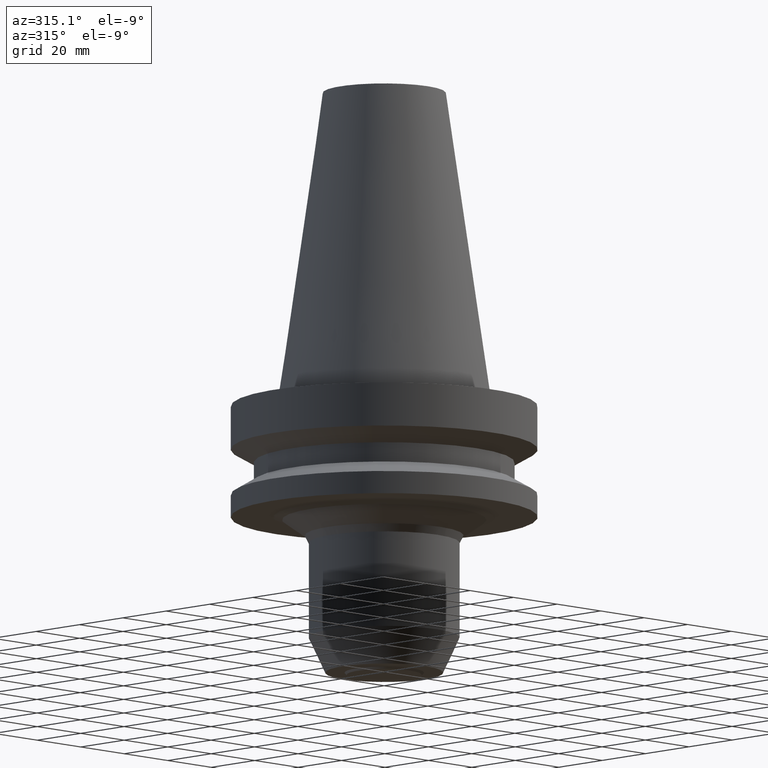
[diagram: clean part render]
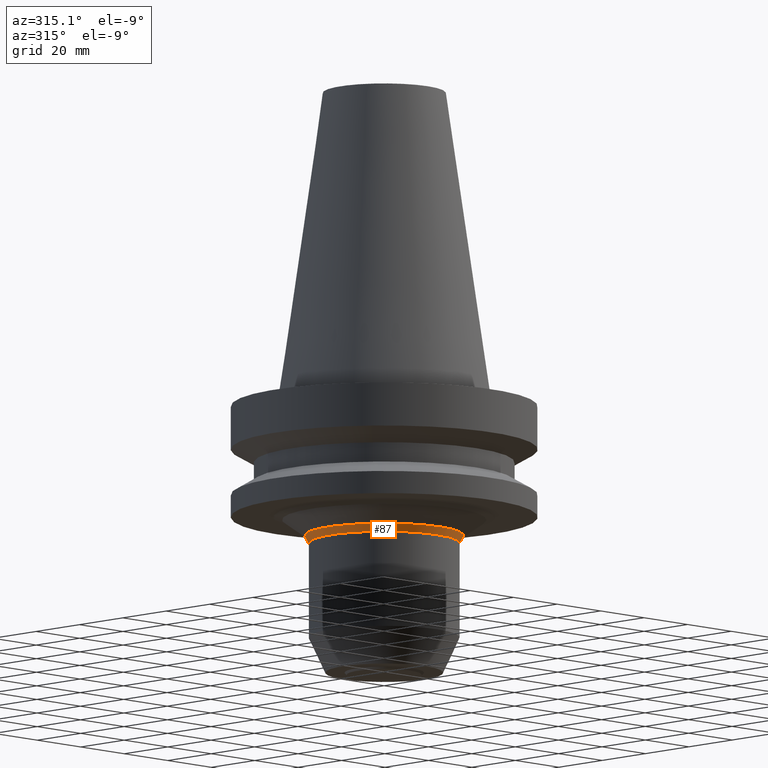
[diagram: same view with one face highlighted and labeled with its STEP entity id]
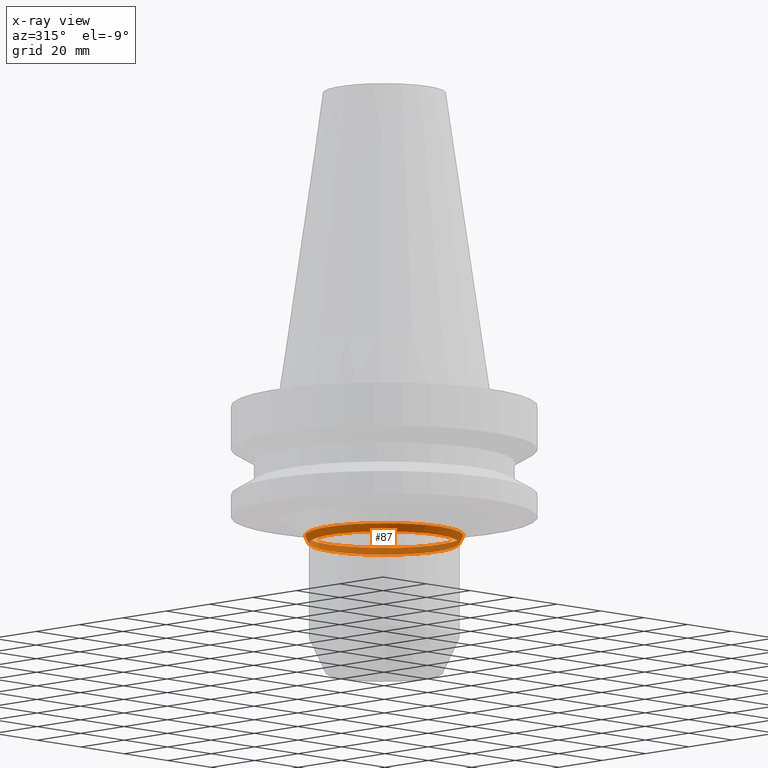
[diagram: x-ray of the same camera — body ghosted, the highlighted face saturated]
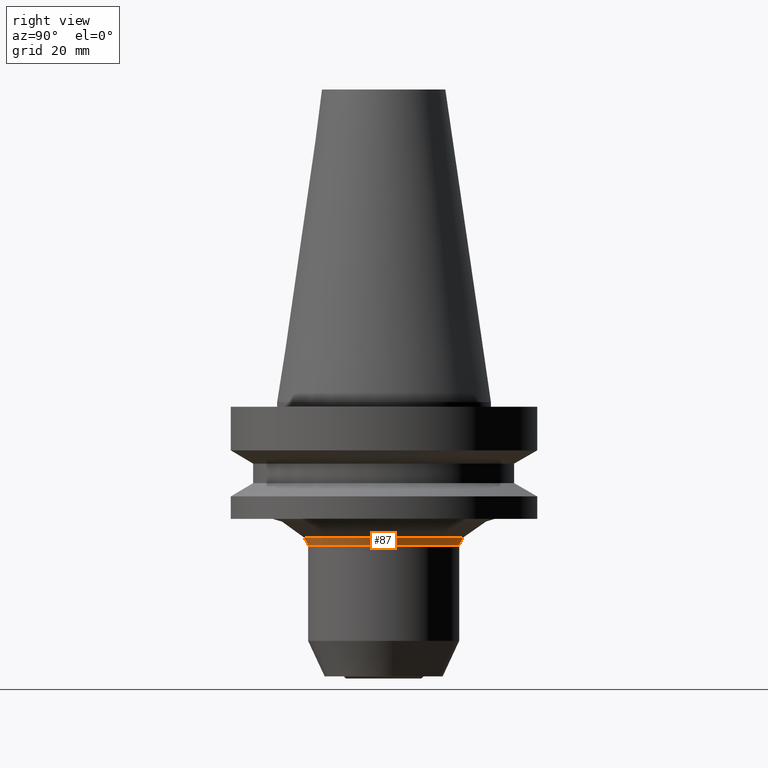
[diagram: same view with one face highlighted and labeled with its STEP entity id]
A machine part, auxiliary view. The second image highlights one B-rep face of the part: STEP entity #87.
The next image is the same camera in x-ray: the body ghosted, the highlighted face saturated — about 38% of this face is hidden behind the body in this view.
A second angle (right view) of the same face is appended — the face is thin or edge-on in the first view.
In plain terms, the highlighted conical surface has half-angle 27.5 deg.
Its self-contained STEP definition (entity closure, byte-faithful):
#87=ADVANCED_FACE('',(#129,#130),#131,.T.);
#129=FACE_BOUND('',#181,.T.);
#130=FACE_BOUND('',#182,.T.);
#131=CONICAL_SURFACE('',#183,25.2396353454734,0.479965544298414);
#181=EDGE_LOOP('',(#257));
#182=EDGE_LOOP('',(#258));
#183=AXIS2_PLACEMENT_3D('',#259,#260,#261);
#257=ORIENTED_EDGE('',*,*,#298,.F.);
#258=ORIENTED_EDGE('',*,*,#297,.T.);
#259=CARTESIAN_POINT('',(2.77584401923079E-015,5.55168803846158E-015,-45.3329730851939));
#260=DIRECTION('',(-6.12323399573677E-017,-1.22464679914735E-016,1.0));
#261=DIRECTION('',(-1.23259516440783E-032,1.0,1.22464679914735E-016));
#297=EDGE_CURVE('',#325,#325,#326,.T.);
#298=EDGE_CURVE('',#327,#327,#328,.T.);
#325=VERTEX_POINT('',#359);
#326=CIRCLE('',#360,25.8792706909468);
#327=VERTEX_POINT('',#361);
#328=CIRCLE('',#362,24.5999999999999);
#359=CARTESIAN_POINT('',(2.70060612455177E-015,25.8792706909469,-44.1042450187603));
#360=AXIS2_PLACEMENT_3D('',#404,#405,#406);
#361=CARTESIAN_POINT('',(2.85108191390981E-015,24.5999999999999,-46.5617011516275));
#362=AXIS2_PLACEMENT_3D('',#407,#408,#409);
#404=CARTESIAN_POINT('',(2.70060612455177E-015,5.40121224910353E-015,-44.1042450187603));
#405=DIRECTION('',(6.12323399573676E-017,1.22464679914735E-016,-1.0));
#406=DIRECTION('',(-1.23259516440783E-032,1.0,1.22464679914735E-016));
#407=CARTESIAN_POINT('',(2.85108191390981E-015,5.70216382781963E-015,-46.5617011516275));
#408=DIRECTION('',(6.12323399573677E-017,1.22464679914735E-016,-1.0));
#409=DIRECTION('',(-1.23259516440783E-032,1.0,1.22464679914735E-016));